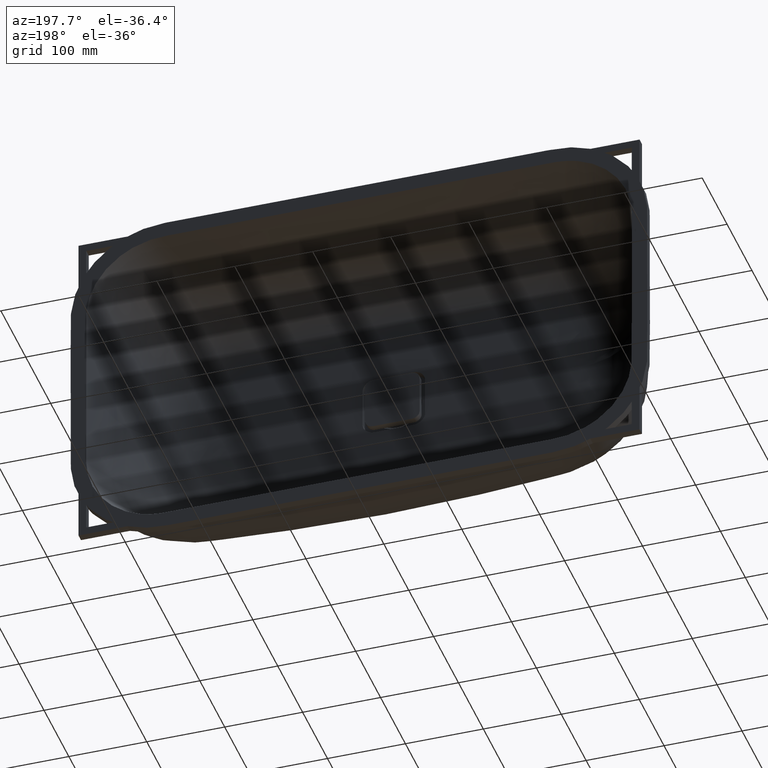
[diagram: clean part render]
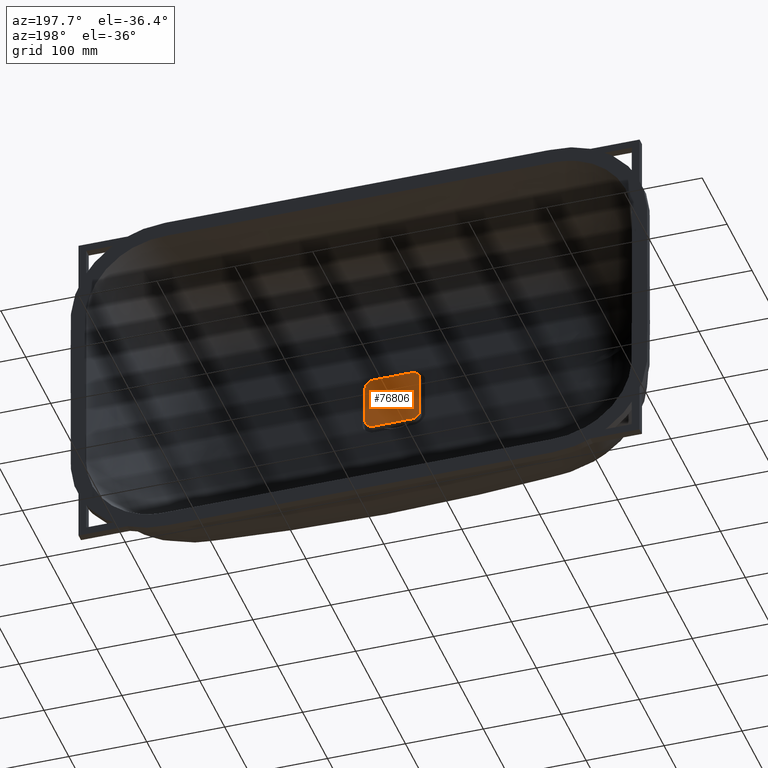
[diagram: same view with one face highlighted and labeled with its STEP entity id]
A machine part, auxiliary view. The second image highlights one B-rep face of the part: STEP entity #76806.
In plain terms, the highlighted planar face has unit normal (0, -1, 0).
Its self-contained STEP definition (entity closure, byte-faithful):
#28 = CARTESIAN_POINT ( 'NONE',  ( -24.99999999999985400, -133.9999999999998900, 35.00000000000047600 ) ) ;
#133 = VERTEX_POINT ( 'NONE', #29409 ) ;
#775 = VECTOR ( 'NONE', #6470, 1000.000000000000000 ) ;
#1782 = VERTEX_POINT ( 'NONE', #82941 ) ;
#5289 = VECTOR ( 'NONE', #43140, 1000.000000000000000 ) ;
#6348 = DIRECTION ( 'NONE',  ( 0.0000000000000000000, 0.0000000000000000000, -1.000000000000000000 ) ) ;
#6470 = DIRECTION ( 'NONE',  ( 1.000000000000000000, 0.0000000000000000000, 0.0000000000000000000 ) ) ;
#8162 = EDGE_CURVE ( 'NONE', #49552, #62961, #71431, .T. ) ;
#9941 = EDGE_CURVE ( 'NONE', #41124, #133, #40371, .T. ) ;
#13611 = ORIENTED_EDGE ( 'NONE', *, *, #78638, .T. ) ;
#15936 = CARTESIAN_POINT ( 'NONE',  ( -24.99999999999985400, -133.9999999999998900, 35.00000000000047600 ) ) ;
#16560 = VECTOR ( 'NONE', #23852, 1000.000000000000000 ) ;
#16741 = DIRECTION ( 'NONE',  ( 0.0000000000000000000, -0.0000000000000000000, -1.000000000000000000 ) ) ;
#17154 = CARTESIAN_POINT ( 'NONE',  ( -34.99999999999992200, -133.9999999999998900, 25.00000000000041200 ) ) ;
#17889 = AXIS2_PLACEMENT_3D ( 'NONE', #83099, #44789, #6348 ) ;
#18515 = AXIS2_PLACEMENT_3D ( 'NONE', #23500, #68340, #29970 ) ;
#20575 = LINE ( 'NONE', #55827, #16560 ) ;
#21729 = CARTESIAN_POINT ( 'NONE',  ( -34.99999999999995000, -133.9999999999998900, -24.99999999999946700 ) ) ;
#22841 = CARTESIAN_POINT ( 'NONE',  ( 25.00000000000007800, -133.9999999999998900, -24.99999999999952400 ) ) ;
#23500 = CARTESIAN_POINT ( 'NONE',  ( 25.00000000000009200, -133.9999999999998900, 25.00000000000046500 ) ) ;
#23852 = DIRECTION ( 'NONE',  ( -2.775557561562898700E-016, -0.0000000000000000000, -1.000000000000000000 ) ) ;
#25725 = CIRCLE ( 'NONE', #17889, 10.00000000000000000 ) ;
#28044 = AXIS2_PLACEMENT_3D ( 'NONE', #48711, #55156, #16741 ) ;
#29310 = DIRECTION ( 'NONE',  ( 0.0000000000000000000, 0.0000000000000000000, -1.000000000000000000 ) ) ;
#29409 = CARTESIAN_POINT ( 'NONE',  ( 35.00000000000008500, -133.9999999999998900, 25.00000000000041200 ) ) ;
#29853 = EDGE_CURVE ( 'NONE', #133, #49902, #20575, .T. ) ;
#29970 = DIRECTION ( 'NONE',  ( 0.0000000000000000000, 0.0000000000000000000, -1.000000000000000000 ) ) ;
#29987 = EDGE_CURVE ( 'NONE', #1782, #47010, #48675, .T. ) ;
#30152 = EDGE_CURVE ( 'NONE', #47010, #49552, #82710, .T. ) ;
#30585 = DIRECTION ( 'NONE',  ( 0.0000000000000000000, 1.000000000000000000, -0.0000000000000000000 ) ) ;
#31640 = VECTOR ( 'NONE', #49668, 1000.000000000000000 ) ;
#32905 = ORIENTED_EDGE ( 'NONE', *, *, #71309, .T. ) ;
#34357 = CARTESIAN_POINT ( 'NONE',  ( -24.99999999999985400, -133.9999999999998900, -34.99999999999953100 ) ) ;
#35230 = CARTESIAN_POINT ( 'NONE',  ( 35.00000000000007100, -133.9999999999998900, -24.99999999999946700 ) ) ;
#35655 = EDGE_LOOP ( 'NONE', ( #32905, #50886, #55225, #75004, #13611, #73209, #40661, #49913 ) ) ;
#37192 = AXIS2_PLACEMENT_3D ( 'NONE', #22841, #67672, #29310 ) ;
#40371 = CIRCLE ( 'NONE', #18515, 9.999999999999996400 ) ;
#40661 = ORIENTED_EDGE ( 'NONE', *, *, #9941, .T. ) ;
#41124 = VERTEX_POINT ( 'NONE', #52180 ) ;
#43031 = VERTEX_POINT ( 'NONE', #15936 ) ;
#43140 = DIRECTION ( 'NONE',  ( 1.387778780781449600E-016, 0.0000000000000000000, 1.000000000000000000 ) ) ;
#44789 = DIRECTION ( 'NONE',  ( 0.0000000000000000000, 1.000000000000000000, -0.0000000000000000000 ) ) ;
#47010 = VERTEX_POINT ( 'NONE', #34357 ) ;
#48675 = LINE ( 'NONE', #68674, #31640 ) ;
#48711 = CARTESIAN_POINT ( 'NONE',  ( 25.00000000000007800, -133.9999999999998900, -24.99999999999952400 ) ) ;
#49552 = VERTEX_POINT ( 'NONE', #21729 ) ;
#49668 = DIRECTION ( 'NONE',  ( -1.000000000000000000, -0.0000000000000000000, -0.0000000000000000000 ) ) ;
#49840 = CARTESIAN_POINT ( 'NONE',  ( -34.99999999999995000, -133.9999999999998900, -24.99999999999946700 ) ) ;
#49902 = VERTEX_POINT ( 'NONE', #35230 ) ;
#49913 = ORIENTED_EDGE ( 'NONE', *, *, #29853, .T. ) ;
#50886 = ORIENTED_EDGE ( 'NONE', *, *, #29987, .T. ) ;
#52180 = CARTESIAN_POINT ( 'NONE',  ( 25.00000000000002100, -133.9999999999998900, 35.00000000000047600 ) ) ;
#55156 = DIRECTION ( 'NONE',  ( 0.0000000000000000000, -1.000000000000000000, 0.0000000000000000000 ) ) ;
#55225 = ORIENTED_EDGE ( 'NONE', *, *, #30152, .T. ) ;
#55740 = FACE_OUTER_BOUND ( 'NONE', #35655, .T. ) ;
#55827 = CARTESIAN_POINT ( 'NONE',  ( 35.00000000000007100, -133.9999999999998900, -24.99999999999946700 ) ) ;
#62961 = VERTEX_POINT ( 'NONE', #17154 ) ;
#64901 = EDGE_CURVE ( 'NONE', #43031, #41124, #64943, .T. ) ;
#64943 = LINE ( 'NONE', #28, #775 ) ;
#67672 = DIRECTION ( 'NONE',  ( 0.0000000000000000000, 1.000000000000000000, -0.0000000000000000000 ) ) ;
#68187 = AXIS2_PLACEMENT_3D ( 'NONE', #68950, #30585, #75383 ) ;
#68340 = DIRECTION ( 'NONE',  ( 0.0000000000000000000, 1.000000000000000000, -0.0000000000000000000 ) ) ;
#68674 = CARTESIAN_POINT ( 'NONE',  ( -24.99999999999985400, -133.9999999999998900, -34.99999999999953100 ) ) ;
#68950 = CARTESIAN_POINT ( 'NONE',  ( -24.99999999999994000, -133.9999999999998900, -24.99999999999952400 ) ) ;
#71309 = EDGE_CURVE ( 'NONE', #49902, #1782, #78800, .T. ) ;
#71431 = LINE ( 'NONE', #49840, #5289 ) ;
#73209 = ORIENTED_EDGE ( 'NONE', *, *, #64901, .T. ) ;
#75004 = ORIENTED_EDGE ( 'NONE', *, *, #8162, .T. ) ;
#75383 = DIRECTION ( 'NONE',  ( 0.0000000000000000000, 0.0000000000000000000, -1.000000000000000000 ) ) ;
#76806 = ADVANCED_FACE ( 'NONE', ( #55740 ), #80298, .F. ) ;
#78638 = EDGE_CURVE ( 'NONE', #62961, #43031, #25725, .T. ) ;
#78800 = CIRCLE ( 'NONE', #37192, 9.999999999999994700 ) ;
#80298 = PLANE ( 'NONE',  #28044 ) ;
#82710 = CIRCLE ( 'NONE', #68187, 10.00000000000000200 ) ;
#82941 = CARTESIAN_POINT ( 'NONE',  ( 25.00000000000000700, -133.9999999999998900, -34.99999999999953100 ) ) ;
#83099 = CARTESIAN_POINT ( 'NONE',  ( -24.99999999999994000, -133.9999999999998900, 25.00000000000046500 ) ) ;